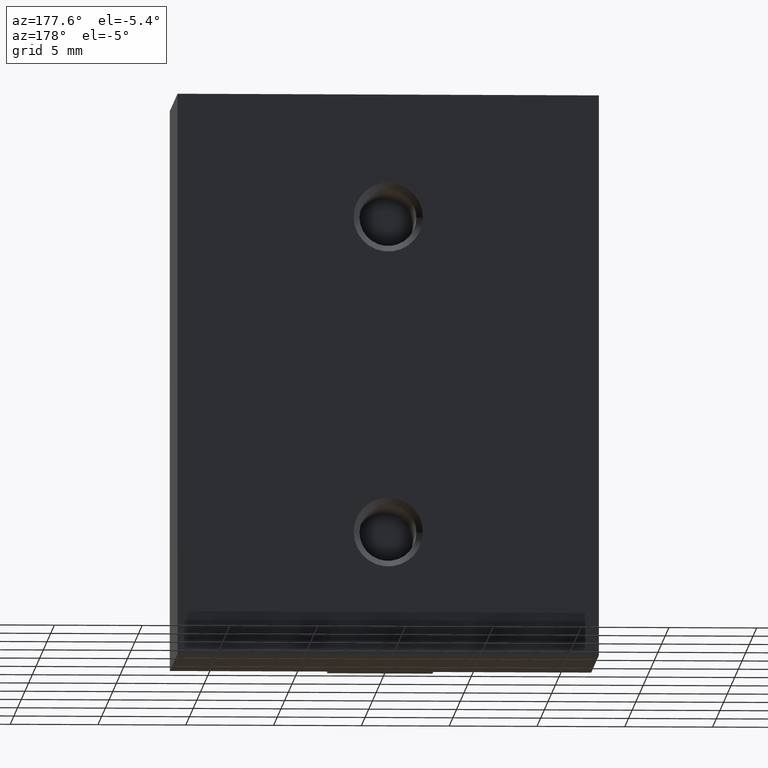
[diagram: clean part render]
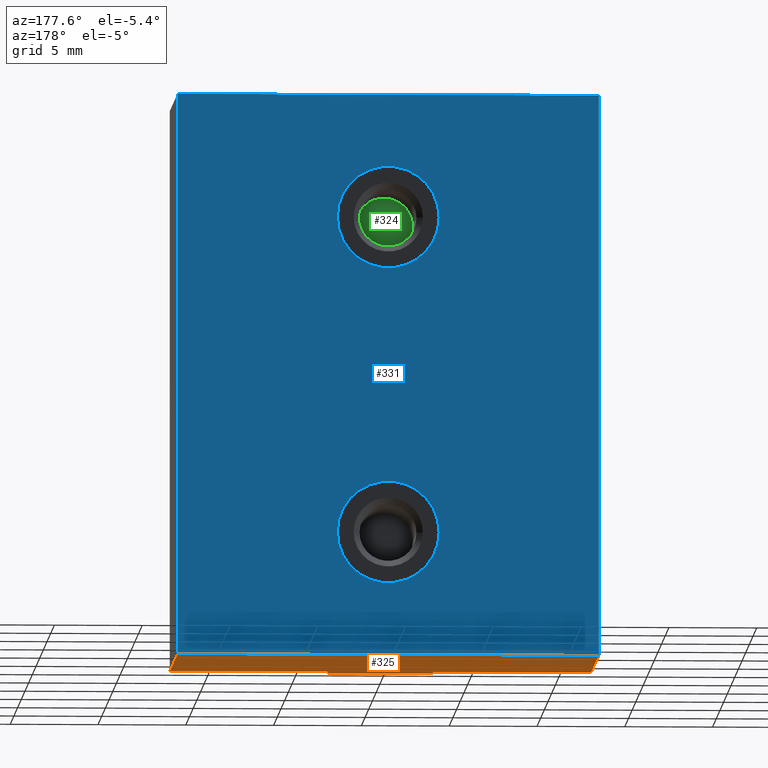
[diagram: same view with three faces highlighted in distinct colors, each labeled with its STEP entity id]
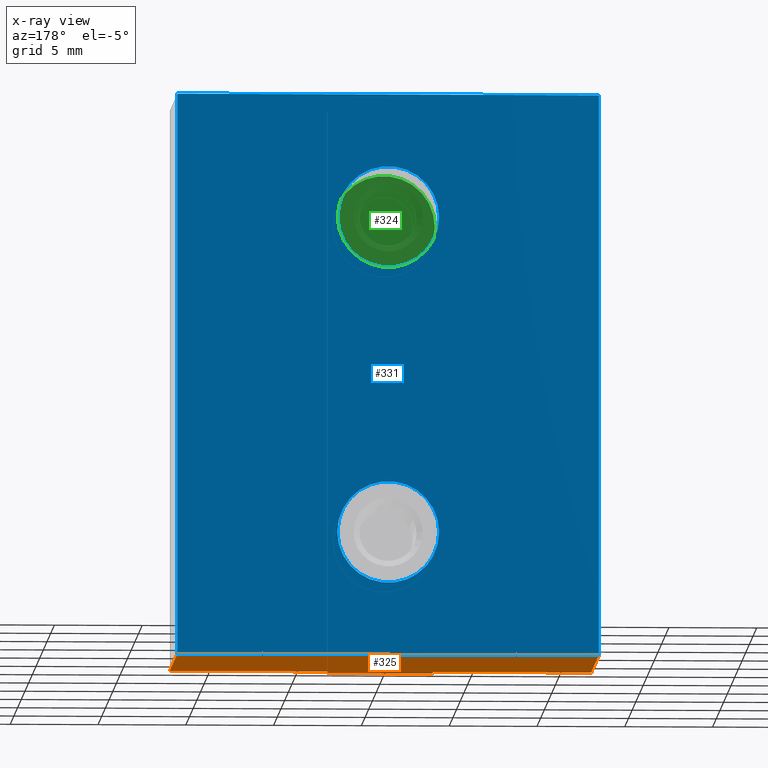
[diagram: x-ray of the same camera — body ghosted, the three highlighted faces saturated]
A machine part, auxiliary view with three faces highlighted in distinct colors.
The next image is the same camera in x-ray (body ghosted, the three faces saturated) — at least one of them is partly hidden behind the body in this view.
Their STEP definitions:

[orange] entity #325 — the highlighted planar face has unit normal (0, 0, 1).
#40=PLANE('',#422);
#56=FACE_OUTER_BOUND('',#76,.T.);
#76=EDGE_LOOP('',(#245,#246,#247,#248,#249,#250,#251,#252));
#98=LINE('',#572,#128);
#99=LINE('',#574,#129);
#100=LINE('',#576,#130);
#101=LINE('',#578,#131);
#102=LINE('',#580,#132);
#103=LINE('',#582,#133);
#104=LINE('',#584,#134);
#105=LINE('',#585,#135);
#128=VECTOR('',#473,10.);
#129=VECTOR('',#474,10.);
#130=VECTOR('',#475,10.);
#131=VECTOR('',#476,10.);
#132=VECTOR('',#477,10.);
#133=VECTOR('',#478,10.);
#134=VECTOR('',#479,10.);
#135=VECTOR('',#480,10.);
#171=VERTEX_POINT('',#570);
#172=VERTEX_POINT('',#571);
#173=VERTEX_POINT('',#573);
#174=VERTEX_POINT('',#575);
#175=VERTEX_POINT('',#577);
#176=VERTEX_POINT('',#579);
#177=VERTEX_POINT('',#581);
#178=VERTEX_POINT('',#583);
#200=EDGE_CURVE('',#171,#172,#98,.T.);
#201=EDGE_CURVE('',#173,#171,#99,.T.);
#202=EDGE_CURVE('',#174,#173,#100,.T.);
#203=EDGE_CURVE('',#175,#174,#101,.T.);
#204=EDGE_CURVE('',#176,#175,#102,.T.);
#205=EDGE_CURVE('',#177,#176,#103,.T.);
#206=EDGE_CURVE('',#178,#177,#104,.T.);
#207=EDGE_CURVE('',#172,#178,#105,.T.);
#245=ORIENTED_EDGE('',*,*,#200,.F.);
#246=ORIENTED_EDGE('',*,*,#201,.F.);
#247=ORIENTED_EDGE('',*,*,#202,.F.);
#248=ORIENTED_EDGE('',*,*,#203,.F.);
#249=ORIENTED_EDGE('',*,*,#204,.F.);
#250=ORIENTED_EDGE('',*,*,#205,.F.);
#251=ORIENTED_EDGE('',*,*,#206,.F.);
#252=ORIENTED_EDGE('',*,*,#207,.F.);
#325=ADVANCED_FACE('',(#56),#40,.F.);
#422=AXIS2_PLACEMENT_3D('',#569,#471,#472);
#471=DIRECTION('center_axis',(0.,0.,1.));
#472=DIRECTION('ref_axis',(1.,0.,0.));
#473=DIRECTION('',(0.,1.,0.));
#474=DIRECTION('',(1.,-7.70988211545247E-17,0.));
#475=DIRECTION('',(0.,1.,0.));
#476=DIRECTION('',(1.,0.,0.));
#477=DIRECTION('',(0.,-1.,0.));
#478=DIRECTION('',(1.,7.70988211545247E-17,0.));
#479=DIRECTION('',(0.,-1.,0.));
#480=DIRECTION('',(-1.,0.,0.));
#569=CARTESIAN_POINT('Origin',(5.55111512312578E-16,6.00352112676056,-16.));
#570=CARTESIAN_POINT('',(12.,1.,-16.));
#571=CARTESIAN_POINT('',(12.,11.5,-16.));
#572=CARTESIAN_POINT('',(12.,11.5,-16.));
#573=CARTESIAN_POINT('',(3.,1.,-16.));
#574=CARTESIAN_POINT('',(12.,1.,-16.));
#575=CARTESIAN_POINT('',(3.,0.,-16.));
#576=CARTESIAN_POINT('',(3.,1.,-16.));
#577=CARTESIAN_POINT('',(-3.,0.,-16.));
#578=CARTESIAN_POINT('',(3.,0.,-16.));
#579=CARTESIAN_POINT('',(-3.,1.,-16.));
#580=CARTESIAN_POINT('',(-3.,0.,-16.));
#581=CARTESIAN_POINT('',(-12.,1.,-16.));
#582=CARTESIAN_POINT('',(-3.,1.,-16.));
#583=CARTESIAN_POINT('',(-12.,11.5,-16.));
#584=CARTESIAN_POINT('',(-12.,1.,-16.));
#585=CARTESIAN_POINT('',(-12.,11.5,-16.));

[blue] entity #331 — the highlighted planar face has unit normal (0, 1, 0).
#31=FACE_BOUND('',#83,.T.);
#32=FACE_BOUND('',#84,.T.);
#46=PLANE('',#428);
#62=FACE_OUTER_BOUND('',#82,.T.);
#82=EDGE_LOOP('',(#273,#274,#275,#276));
#83=EDGE_LOOP('',(#277));
#84=EDGE_LOOP('',(#278));
#105=LINE('',#585,#135);
#116=LINE('',#607,#146);
#117=LINE('',#610,#147);
#118=LINE('',#611,#148);
#135=VECTOR('',#480,10.);
#146=VECTOR('',#501,10.);
#147=VECTOR('',#504,10.);
#148=VECTOR('',#505,10.);
#156=CIRCLE('',#415,2.9);
#158=CIRCLE('',#419,2.9);
#167=VERTEX_POINT('',#556);
#169=VERTEX_POINT('',#563);
#172=VERTEX_POINT('',#571);
#178=VERTEX_POINT('',#583);
#184=VERTEX_POINT('',#605);
#185=VERTEX_POINT('',#609);
#194=EDGE_CURVE('',#167,#167,#156,.T.);
#197=EDGE_CURVE('',#169,#169,#158,.T.);
#207=EDGE_CURVE('',#172,#178,#105,.T.);
#218=EDGE_CURVE('',#184,#178,#116,.T.);
#219=EDGE_CURVE('',#184,#185,#117,.T.);
#220=EDGE_CURVE('',#185,#172,#118,.T.);
#273=ORIENTED_EDGE('',*,*,#219,.T.);
#274=ORIENTED_EDGE('',*,*,#220,.T.);
#275=ORIENTED_EDGE('',*,*,#207,.T.);
#276=ORIENTED_EDGE('',*,*,#218,.F.);
#277=ORIENTED_EDGE('',*,*,#194,.T.);
#278=ORIENTED_EDGE('',*,*,#197,.T.);
#331=ADVANCED_FACE('',(#62,#31,#32),#46,.T.);
#415=AXIS2_PLACEMENT_3D('',#557,#455,#456);
#419=AXIS2_PLACEMENT_3D('',#564,#464,#465);
#428=AXIS2_PLACEMENT_3D('',#608,#502,#503);
#455=DIRECTION('center_axis',(0.,-1.,0.));
#456=DIRECTION('ref_axis',(-1.,0.,0.));
#464=DIRECTION('center_axis',(0.,-1.,0.));
#465=DIRECTION('ref_axis',(-1.,0.,0.));
#480=DIRECTION('',(-1.,0.,0.));
#501=DIRECTION('',(0.,0.,-1.));
#502=DIRECTION('center_axis',(0.,1.,0.));
#503=DIRECTION('ref_axis',(0.,0.,1.));
#504=DIRECTION('',(1.,0.,0.));
#505=DIRECTION('',(0.,0.,-1.));
#556=CARTESIAN_POINT('',(2.9,11.5,-9.));
#557=CARTESIAN_POINT('Origin',(0.,11.5,-9.));
#563=CARTESIAN_POINT('',(2.9,11.5,9.));
#564=CARTESIAN_POINT('Origin',(0.,11.5,9.));
#571=CARTESIAN_POINT('',(12.,11.5,-16.));
#583=CARTESIAN_POINT('',(-12.,11.5,-16.));
#585=CARTESIAN_POINT('',(-12.,11.5,-16.));
#605=CARTESIAN_POINT('',(-12.,11.5,16.));
#607=CARTESIAN_POINT('',(-12.,11.5,0.));
#608=CARTESIAN_POINT('Origin',(-12.,11.5,0.));
#609=CARTESIAN_POINT('',(12.,11.5,16.));
#610=CARTESIAN_POINT('',(-12.,11.5,16.));
#611=CARTESIAN_POINT('',(12.,11.5,0.));

[green] entity #324 — the highlighted planar face has unit normal (0, -1, 0).
#39=PLANE('',#421);
#55=FACE_OUTER_BOUND('',#75,.T.);
#75=EDGE_LOOP('',(#244));
#159=CIRCLE('',#420,2.9);
#170=VERTEX_POINT('',#565);
#199=EDGE_CURVE('',#170,#170,#159,.T.);
#244=ORIENTED_EDGE('',*,*,#199,.T.);
#324=ADVANCED_FACE('',(#55),#39,.F.);
#420=AXIS2_PLACEMENT_3D('',#567,#467,#468);
#421=AXIS2_PLACEMENT_3D('',#568,#469,#470);
#467=DIRECTION('center_axis',(0.,1.,0.));
#468=DIRECTION('ref_axis',(-1.,0.,0.));
#469=DIRECTION('center_axis',(0.,-1.,0.));
#470=DIRECTION('ref_axis',(0.,0.,-1.));
#565=CARTESIAN_POINT('',(2.9,5.5,9.));
#567=CARTESIAN_POINT('Origin',(0.,5.5,9.));
#568=CARTESIAN_POINT('Origin',(0.,5.5,9.));